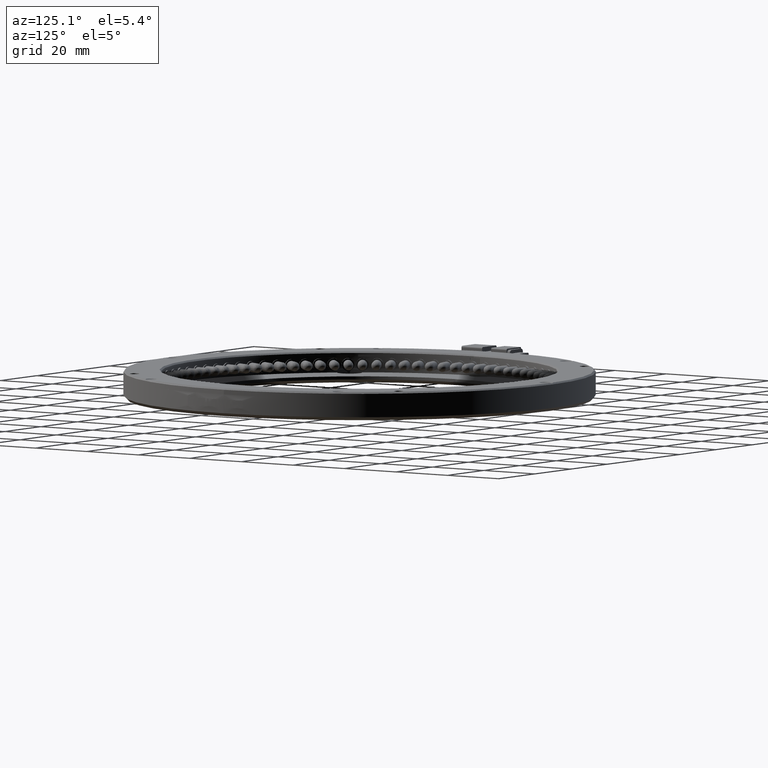
[diagram: clean part render]
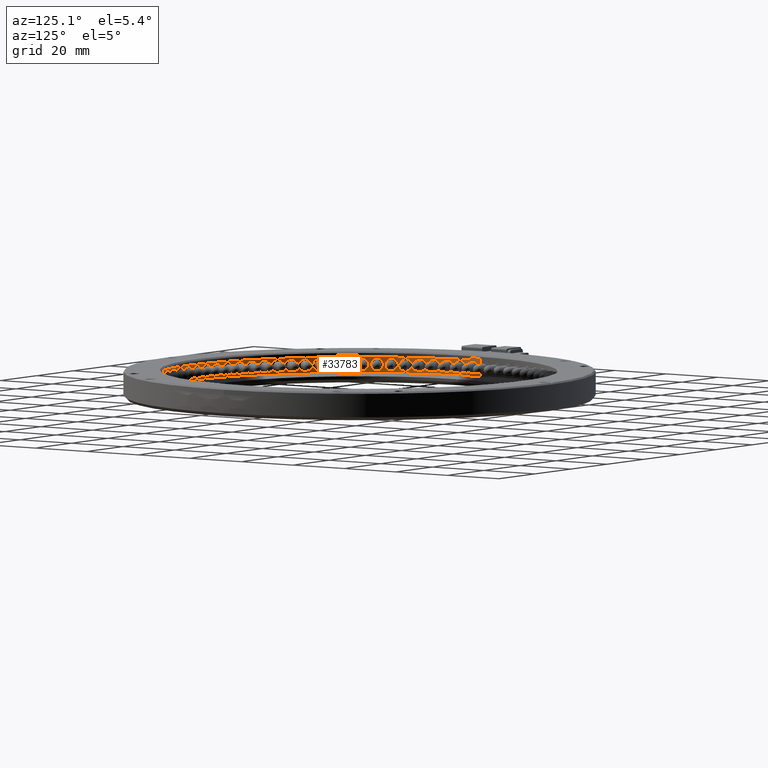
[diagram: same view with one face highlighted and labeled with its STEP entity id]
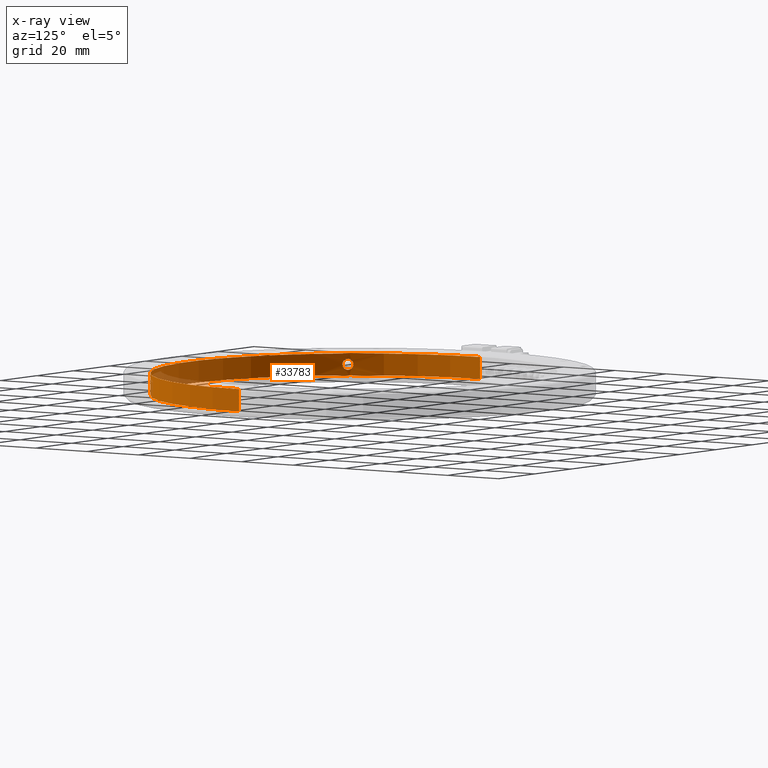
[diagram: x-ray of the same camera — body ghosted, the highlighted face saturated]
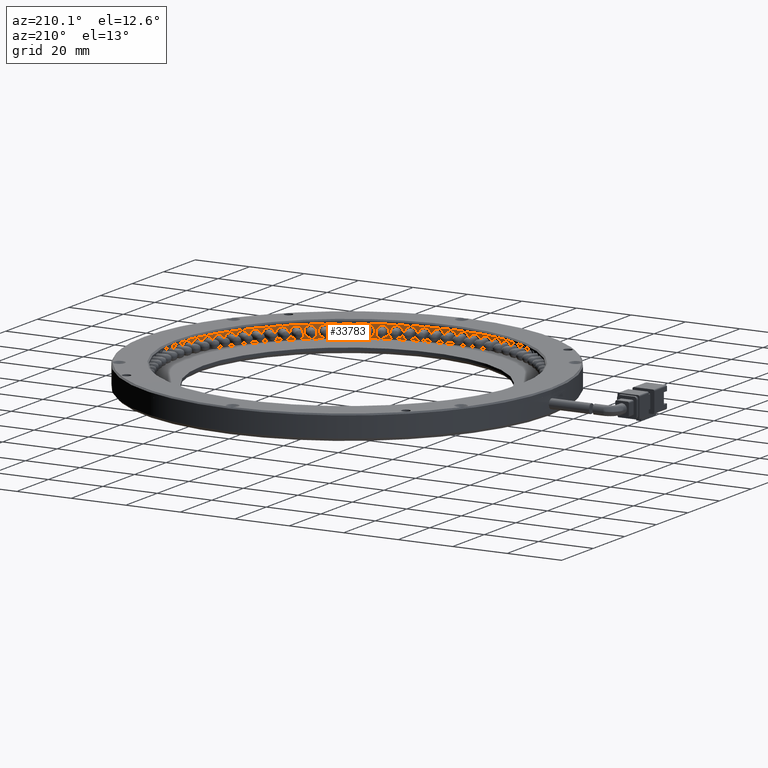
[diagram: same view with one face highlighted and labeled with its STEP entity id]
A machine part, auxiliary view. The second image highlights one B-rep face of the part: STEP entity #33783.
The next image is the same camera in x-ray: the body ghosted, the highlighted face saturated — about 3% of this face is hidden behind the body in this view.
A second angle (auxiliary view) of the same face is appended — the face is thin or edge-on in the first view.
In plain terms, the highlighted cylindrical surface (partial cylindrical patch) has radius 66.5 mm, axis along (-0, -0, -1).
Its self-contained STEP definition (entity closure, byte-faithful):
#1762 = ORIENTED_EDGE ( 'NONE', *, *, #5152, .T. ) ;
#3948 = CARTESIAN_POINT ( 'NONE',  ( -42.40390993523638500, -38.76896511459455000, 0.5690370262806232500 ) ) ;
#4209 = CARTESIAN_POINT ( 'NONE',  ( -41.02071234989311700, -40.55202704793402500, -0.6391727206138718700 ) ) ;
#5125 = CARTESIAN_POINT ( 'NONE',  ( 77.32239847715735000, 1.095939086294428500, -2.500000000000061300 ) ) ;
#5152 = EDGE_CURVE ( 'NONE', #13533, #15591, #46201, .T. ) ;
#5780 = CARTESIAN_POINT ( 'NONE',  ( -40.32572832005614300, -41.40254388155199900, 1.586017716099250100 ) ) ;
#6038 = CARTESIAN_POINT ( 'NONE',  ( -41.84729988003346100, -39.50164825958380300, 2.595554777971091000 ) ) ;
#7526 = EDGE_CURVE ( 'NONE', #25603, #13533, #62949, .T. ) ;
#8360 = EDGE_LOOP ( 'NONE', ( #11730, #63503, #1762, #9623 ) ) ;
#8380 = CIRCLE ( 'NONE', #28830, 66.50000000000000000 ) ;
#9117 = CARTESIAN_POINT ( 'NONE',  ( 77.32239847715735000, 1.095939086294428500, 4.499999999999938700 ) ) ;
#9623 = ORIENTED_EDGE ( 'NONE', *, *, #35879, .F. ) ;
#10017 = CARTESIAN_POINT ( 'NONE',  ( -42.33099266505699600, -38.86615469662609000, 0.2459992943964184300 ) ) ;
#10288 = CARTESIAN_POINT ( 'NONE',  ( -40.82322557163833200, -40.79664393553939300, -0.4968606737611580000 ) ) ;
#10647 = VERTEX_POINT ( 'NONE', #69360 ) ;
#11074 = FACE_OUTER_BOUND ( 'NONE', #8360, .T. ) ;
#11148 = DIRECTION ( 'NONE',  ( -0.0000000000000000000, -0.0000000000000000000, -1.000000000000000000 ) ) ;
#11730 = ORIENTED_EDGE ( 'NONE', *, *, #69000, .F. ) ;
#11855 = CARTESIAN_POINT ( 'NONE',  ( -40.41612286159761400, -41.29354030836302800, 1.898435626814752400 ) ) ;
#12122 = CARTESIAN_POINT ( 'NONE',  ( -42.02516021156991100, -39.26982036738500200, 2.414182196716494900 ) ) ;
#13461 = VECTOR ( 'NONE', #33009, 1000.000000000000000 ) ;
#13533 = VERTEX_POINT ( 'NONE', #5125 ) ;
#14848 = EDGE_CURVE ( 'NONE', #37823, #10647, #77165, .T. ) ;
#15026 = CARTESIAN_POINT ( 'NONE',  ( 10.82239847715735200, 1.095939086294420100, 4.499999999999938700 ) ) ;
#15591 = VERTEX_POINT ( 'NONE', #31446 ) ;
#16133 = CARTESIAN_POINT ( 'NONE',  ( -42.22218481369444000, -39.01049700359051500, -0.04472191200701927000 ) ) ;
#16285 = VECTOR ( 'NONE', #17835, 1000.000000000000000 ) ;
#16391 = CARTESIAN_POINT ( 'NONE',  ( -40.64756421293557800, -41.01225039377268900, -0.2979767862908678200 ) ) ;
#17064 = VERTEX_POINT ( 'NONE', #48737 ) ;
#17835 = DIRECTION ( 'NONE',  ( -0.0000000000000000000, -0.0000000000000000000, -1.000000000000000000 ) ) ;
#17995 = CARTESIAN_POINT ( 'NONE',  ( -40.54397604113075500, -41.13855021126637000, 2.178709276507188300 ) ) ;
#18252 = CARTESIAN_POINT ( 'NONE',  ( -42.17766240260969100, -39.06934726087083500, 2.178701671954590900 ) ) ;
#19550 = AXIS2_PLACEMENT_3D ( 'NONE', #72591, #78718, #66770 ) ;
#20667 = EDGE_LOOP ( 'NONE', ( #52042, #75551 ) ) ;
#21188 = DIRECTION ( 'NONE',  ( -1.000000000000000000, 0.0000000000000000000, 0.0000000000000000000 ) ) ;
#22273 = CARTESIAN_POINT ( 'NONE',  ( -42.03107183569788700, -39.26229112023693100, -0.3769213731981382900 ) ) ;
#22549 = CARTESIAN_POINT ( 'NONE',  ( -40.49774124270447100, -41.19468968047714700, -0.04623382390821743900 ) ) ;
#22602 = EDGE_CURVE ( 'NONE', #10647, #37823, #34865, .T. ) ;
#24103 = CARTESIAN_POINT ( 'NONE',  ( -40.82088600409228700, -40.79994974999408400, 2.551234829105121400 ) ) ;
#24367 = CARTESIAN_POINT ( 'NONE',  ( -42.29787250908176300, -38.91019585203164200, 1.900718426666516500 ) ) ;
#25603 = VERTEX_POINT ( 'NONE', #9117 ) ;
#28361 = CARTESIAN_POINT ( 'NONE',  ( -41.65487086028246500, -39.75048715003278200, -0.6818929946642720000 ) ) ;
#28629 = CARTESIAN_POINT ( 'NONE',  ( -40.38200627217636900, -41.33472045741530100, 0.2454182792795570600 ) ) ;
#28830 = AXIS2_PLACEMENT_3D ( 'NONE', #15026, #57574, #21188 ) ;
#30170 = CARTESIAN_POINT ( 'NONE',  ( -41.22882384106255700, -40.29213105324745200, 2.771809000720265800 ) ) ;
#30443 = CARTESIAN_POINT ( 'NONE',  ( -42.41005806294423800, -38.76084591823615700, 1.480472385864211000 ) ) ;
#31446 = CARTESIAN_POINT ( 'NONE',  ( -55.67760152284265000, 1.095939086294420100, -2.500000000000061300 ) ) ;
#33009 = DIRECTION ( 'NONE',  ( -0.0000000000000000000, -0.0000000000000000000, -1.000000000000000000 ) ) ;
#33783 = ADVANCED_FACE ( 'NONE', ( #73880, #11074 ), #58955, .F. ) ;
#34219 = CARTESIAN_POINT ( 'NONE',  ( -42.43734273063305600, -38.72428148666566000, 1.021964161339789200 ) ) ;
#34473 = CARTESIAN_POINT ( 'NONE',  ( -41.30101666730725900, -40.20070263372797100, -0.7281128155581478900 ) ) ;
#34721 = CARTESIAN_POINT ( 'NONE',  ( -40.26850051184284500, -41.47130231476160800, 0.7907479674671132900 ) ) ;
#34865 = B_SPLINE_CURVE_WITH_KNOTS ( 'NONE', 3,
 ( #72494, #36060, #78603, #42173, #5780, #48341, #11855, #54418, #17995, #60570, #24103, #66660, #30170, #72743, #36321, #78875, #42442, #6038, #48602, #12122, #54672, #18252, #60838, #24367, #66919, #30443, #73028, #36583 ),
 .UNSPECIFIED., .F., .F.,
 ( 4, 2, 2, 2, 2, 2, 2, 2, 2, 2, 2, 2, 2, 4 ),
 ( 0.0000000000000000000, 0.0003419004123318997100, 0.0006838008246637994100, 0.001025701236995699100, 0.001367601649327598800, 0.002051402473991386000, 0.002735203298655173400, 0.003077103710987052100, 0.003419004123318931700, 0.003760904535650810400, 0.004102804947982689600, 0.004444705360314569200, 0.004786605772646447900, 0.005470406597310207100 ),
 .UNSPECIFIED. ) ;
#35879 = EDGE_CURVE ( 'NONE', #17064, #15591, #78182, .T. ) ;
#36060 = CARTESIAN_POINT ( 'NONE',  ( -40.26850051184285200, -41.47130231476161600, 1.137572235240655200 ) ) ;
#36321 = CARTESIAN_POINT ( 'NONE',  ( -41.51257383915137900, -39.93226177574006600, 2.760704473882566600 ) ) ;
#36583 = CARTESIAN_POINT ( 'NONE',  ( -42.43734273063305600, -38.72428148666566000, 1.021964161339789200 ) ) ;
#37823 = VERTEX_POINT ( 'NONE', #40632 ) ;
#40291 = CARTESIAN_POINT ( 'NONE',  ( -42.43055015247469400, -38.73337118148553100, 0.7926807244083543500 ) ) ;
#40555 = CARTESIAN_POINT ( 'NONE',  ( -41.08897100802388300, -40.46693270449071600, -0.6721790028006343600 ) ) ;
#40632 = CARTESIAN_POINT ( 'NONE',  ( -42.43734273063305600, -38.72428148666566000, 1.021964161339789200 ) ) ;
#42173 = CARTESIAN_POINT ( 'NONE',  ( -40.30420768505752700, -41.42841436547581700, 1.474891296398955800 ) ) ;
#42442 = CARTESIAN_POINT ( 'NONE',  ( -41.71768189051920200, -39.66925658724268500, 2.683101043293450800 ) ) ;
#46201 = CIRCLE ( 'NONE', #53780, 66.50000000000000000 ) ;
#46221 = CARTESIAN_POINT ( 'NONE',  ( -42.43734273063304800, -38.72428148666565300, 0.9063560874389218200 ) ) ;
#46504 = CARTESIAN_POINT ( 'NONE',  ( -42.38373865248530600, -38.79590094614609100, 0.4579106065803276200 ) ) ;
#46760 = CARTESIAN_POINT ( 'NONE',  ( -40.88775187497427800, -40.71699639907441100, -0.5516264552915125500 ) ) ;
#47621 = CARTESIAN_POINT ( 'NONE',  ( 10.82239847715735200, 1.095939086294420100, -2.500000000000061300 ) ) ;
#48341 = CARTESIAN_POINT ( 'NONE',  ( -40.38182678246929000, -41.33493699461598700, 1.797929028283159500 ) ) ;
#48602 = CARTESIAN_POINT ( 'NONE',  ( -41.90980251052527400, -39.42040298237492400, 2.540788996440737100 ) ) ;
#48737 = CARTESIAN_POINT ( 'NONE',  ( -55.67760152284265000, 1.095939086294420100, 4.499999999999938700 ) ) ;
#52042 = ORIENTED_EDGE ( 'NONE', *, *, #22602, .T. ) ;
#52613 = CARTESIAN_POINT ( 'NONE',  ( -42.29868303532111200, -38.90911973476915600, 0.1454926958648262700 ) ) ;
#52845 = CARTESIAN_POINT ( 'NONE',  ( -40.70351752006610700, -40.94379183907964400, -0.3702538740369151200 ) ) ;
#53706 = DIRECTION ( 'NONE',  ( -1.000000000000000000, 0.0000000000000000000, 0.0000000000000000000 ) ) ;
#53780 = AXIS2_PLACEMENT_3D ( 'NONE', #47621, #11148, #53706 ) ;
#54273 = CARTESIAN_POINT ( 'NONE',  ( 77.32239847715735000, 1.095939086294428500, 4.499999999999938700 ) ) ;
#54418 = CARTESIAN_POINT ( 'NONE',  ( -40.49698451502895600, -41.19560807898949400, 2.088650234686598900 ) ) ;
#54672 = CARTESIAN_POINT ( 'NONE',  ( -42.07876830452690300, -39.19951020695977900, 2.341905108970443900 ) ) ;
#57574 = DIRECTION ( 'NONE',  ( -0.0000000000000000000, -0.0000000000000000000, -1.000000000000000000 ) ) ;
#58720 = CARTESIAN_POINT ( 'NONE',  ( -42.17758698032898200, -39.06944475209369500, -0.1347809538276126300 ) ) ;
#58955 = CYLINDRICAL_SURFACE ( 'NONE', #19550, 66.50000000000000000 ) ;
#58989 = CARTESIAN_POINT ( 'NONE',  ( -40.54389870983692400, -41.13864619527520000, -0.1347733492750157500 ) ) ;
#60570 = CARTESIAN_POINT ( 'NONE',  ( -40.69756535462752100, -40.95128907784061300, 2.420849695877715500 ) ) ;
#60838 = CARTESIAN_POINT ( 'NONE',  ( -42.22146705344835000, -39.01144616787107800, 2.090162146587794600 ) ) ;
#62949 = LINE ( 'NONE', #54273, #16285 ) ;
#63503 = ORIENTED_EDGE ( 'NONE', *, *, #7526, .T. ) ;
#64822 = CARTESIAN_POINT ( 'NONE',  ( -41.91247528572342400, -39.41736024376447000, -0.5073065064255425400 ) ) ;
#65078 = CARTESIAN_POINT ( 'NONE',  ( -40.41698155425267200, -41.29250221970041000, 0.1432098960130599200 ) ) ;
#66660 = CARTESIAN_POINT ( 'NONE',  ( -41.08515278539678700, -40.47208294169286800, 2.725821317343849700 ) ) ;
#66770 = DIRECTION ( 'NONE',  ( -1.000000000000000000, 0.0000000000000000000, 0.0000000000000000000 ) ) ;
#66919 = CARTESIAN_POINT ( 'NONE',  ( -42.33082368217353800, -38.86637952922902200, 1.798510043400022300 ) ) ;
#69000 = EDGE_CURVE ( 'NONE', #25603, #17064, #8380, .T. ) ;
#69360 = CARTESIAN_POINT ( 'NONE',  ( -40.26850051184285200, -41.47130231476161600, 1.021964161339789000 ) ) ;
#69478 = CARTESIAN_POINT ( 'NONE',  ( -55.67760152284265000, 1.095939086294420100, 4.499999999999938700 ) ) ;
#70922 = CARTESIAN_POINT ( 'NONE',  ( -41.51316426280584400, -39.93199002775870100, -0.7278806780406889000 ) ) ;
#71203 = CARTESIAN_POINT ( 'NONE',  ( -40.29773654314133300, -41.43627853397089900, 0.5634559368153669900 ) ) ;
#72494 = CARTESIAN_POINT ( 'NONE',  ( -40.26850051184285200, -41.47130231476161600, 1.021964161339789000 ) ) ;
#72591 = CARTESIAN_POINT ( 'NONE',  ( 10.82239847715735200, 1.095939086294420100, 4.499999999999938700 ) ) ;
#72743 = CARTESIAN_POINT ( 'NONE',  ( -41.44098102583106400, -40.02342601824860700, 2.772041138237726800 ) ) ;
#73028 = CARTESIAN_POINT ( 'NONE',  ( -42.43734273063305600, -38.72428148666566000, 1.253180263070588400 ) ) ;
#73880 = FACE_BOUND ( 'NONE', #20667, .T. ) ;
#75551 = ORIENTED_EDGE ( 'NONE', *, *, #14848, .T. ) ;
#77031 = CARTESIAN_POINT ( 'NONE',  ( -41.22895118312165900, -40.29149369066842500, -0.7167761512029881000 ) ) ;
#77165 = B_SPLINE_CURVE_WITH_KNOTS ( 'NONE', 3,
 ( #34219, #46221, #40291, #3948, #46504, #10017, #52613, #16133, #58720, #22273, #64822, #28361, #70922, #34473, #77031, #40555, #4209, #46760, #10288, #52845, #16391, #58989, #22549, #65078, #28629, #71203, #34721, #77292 ),
 .UNSPECIFIED., .F., .F.,
 ( 4, 2, 2, 2, 2, 2, 2, 2, 2, 2, 2, 2, 2, 4 ),
 ( 0.005470406597310207100, 0.005812307077767416700, 0.006154207558224626300, 0.006496108038681836000, 0.006838008519139045600, 0.007521809480053456100, 0.008205610440967865000, 0.008547510921425079800, 0.008889411401882292900, 0.009231311882339506000, 0.009573212362796717400, 0.009915112843253932200, 0.01025701332371114400, 0.01094081428462556600 ),
 .UNSPECIFIED. ) ;
#77292 = CARTESIAN_POINT ( 'NONE',  ( -40.26850051184285200, -41.47130231476161600, 1.021964161339789000 ) ) ;
#78182 = LINE ( 'NONE', #69478, #13461 ) ;
#78603 = CARTESIAN_POINT ( 'NONE',  ( -40.27576614277647600, -41.46258610703738200, 1.251247598271226300 ) ) ;
#78718 = DIRECTION ( 'NONE',  ( -0.0000000000000000000, -0.0000000000000000000, -1.000000000000000000 ) ) ;
#78875 = CARTESIAN_POINT ( 'NONE',  ( -41.65074707260390600, -39.75539613592101100, 2.716107325480212200 ) ) ;